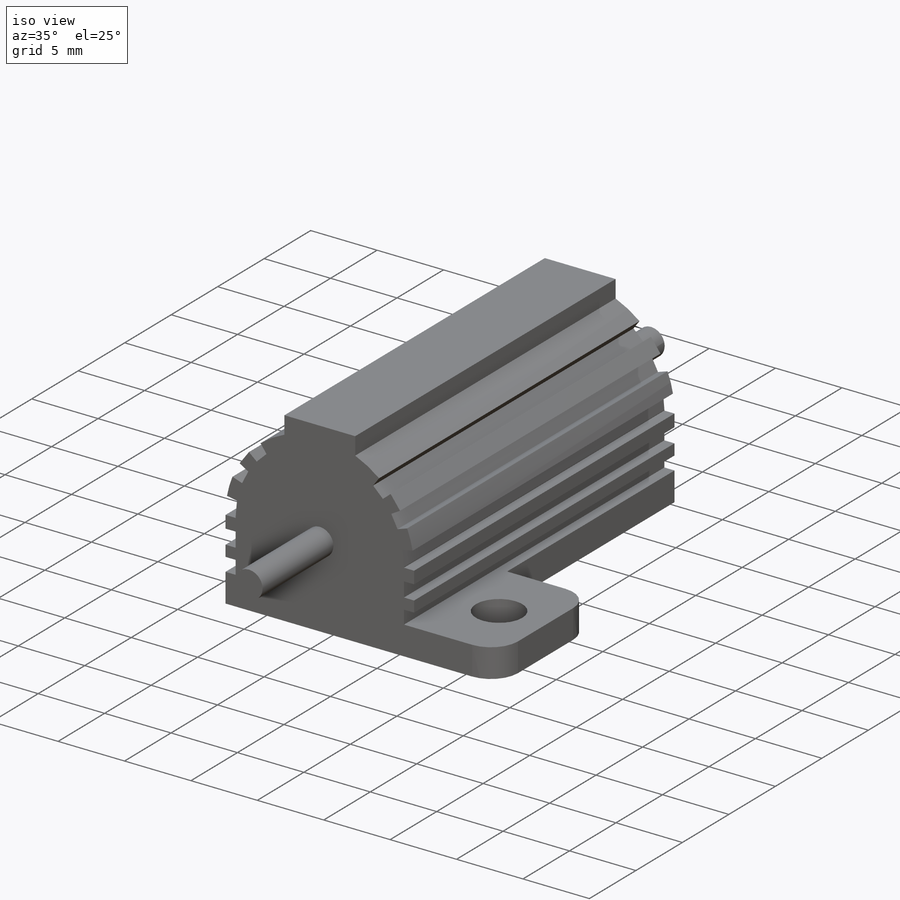
[diagram: iso view]
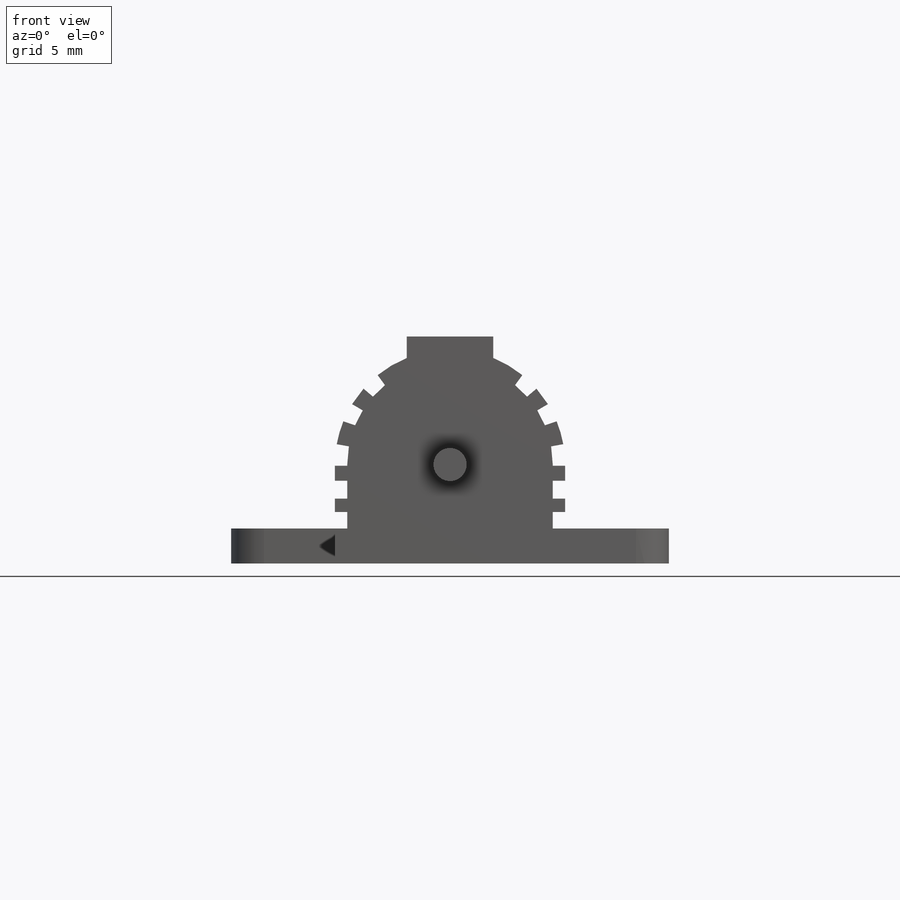
[diagram: front view]
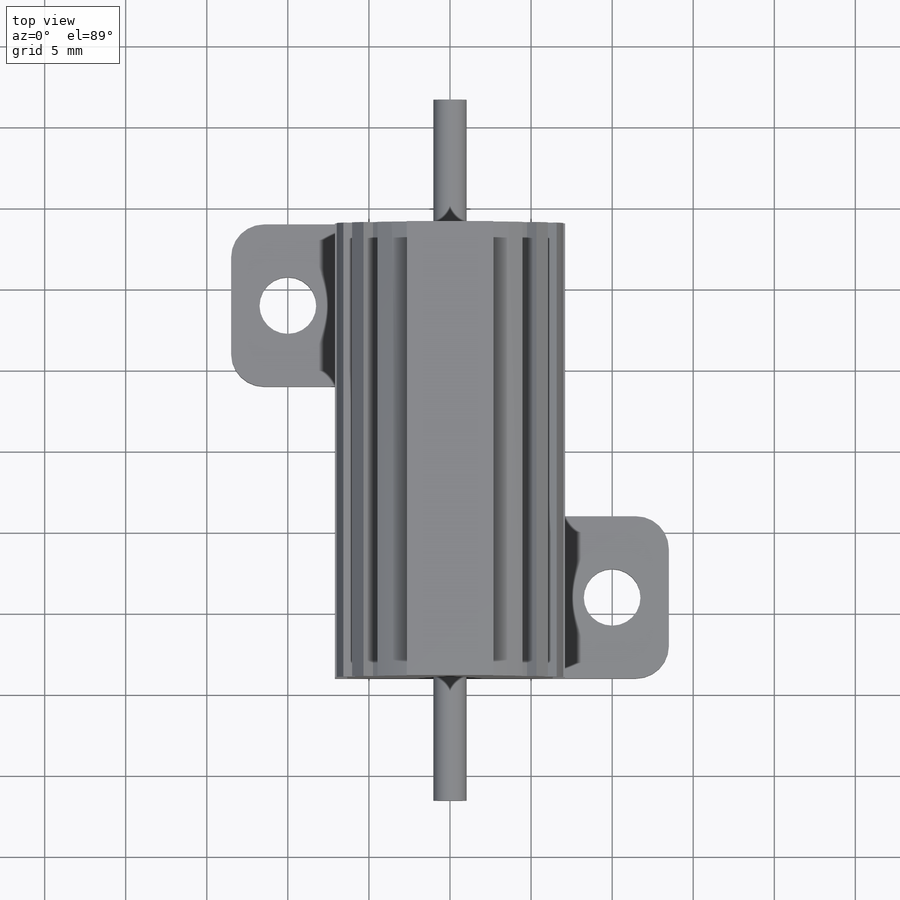
[diagram: top view]
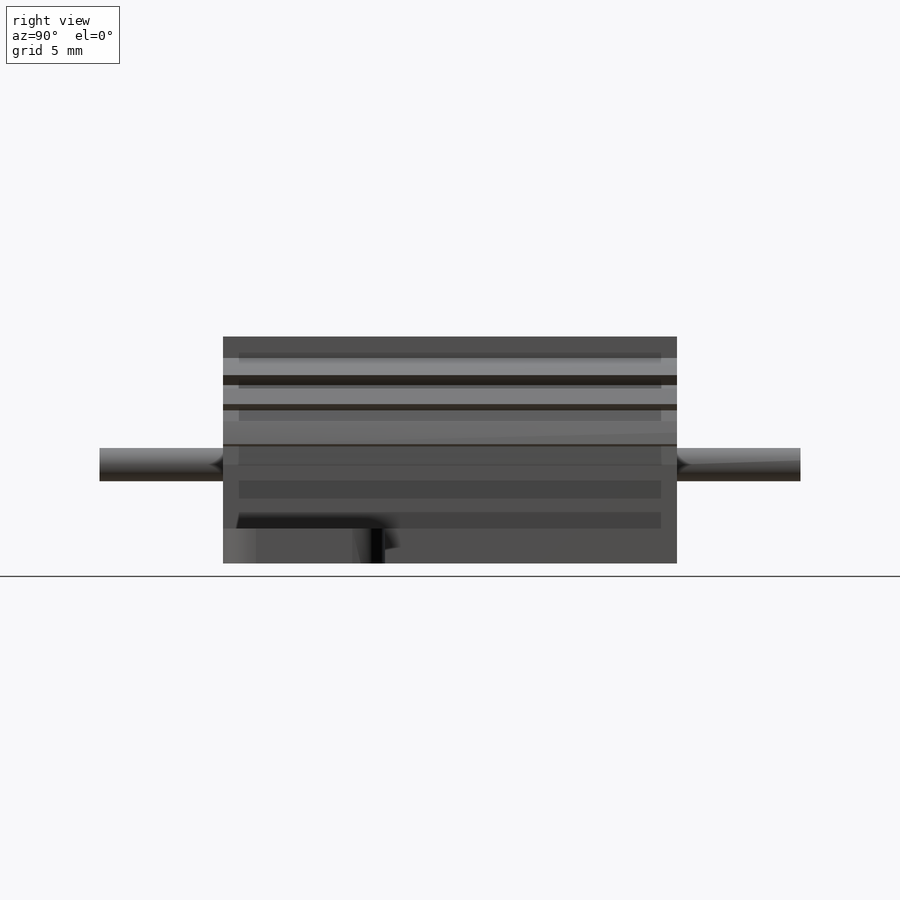
[diagram: right view]
SOLIDWORKS PART (.sldprt)
format: sldprt  version: not decoded by parser v0  size: 392,192 bytes
history: native  units: mm
features: sketch x5, plane x3, extrude x3, cut_extrude x2, mirror x2, material x1, fillet x1 + 1 further entry (+10 scaffold rows collapsed)
feature tree (28):
  scaffold x10  (default folders/planes/origin — collapsed)
  material  "Material <not specified>"
  plane  "PLANE-1"
  plane  "PLANE-2"
  plane  "PLANE-3"
  "Design Table"
  sketch  "Sketch2"  dims[D1=14.2mm D2=6.096mm D3=14.0mm D4=6.096mm]
  extrude  "Extrude1"  Depth=28mm
  sketch  "Sketch3"  dims[c1.D2=2.159mm c1.D3=5.2832mm c1.D1=0.762mm c2.D3=0.762mm]
  sketch  "Sketch4"  dims[D1=27.0mm D2=10.0mm D3=10.0mm]
  extrude  "Extrude8"  Depth=2.159mm
  fillet  "Fillet1"  Radius=2.032mm
  cut_extrude  "Cut-Extrude1"  [1 undecoded]
  mirror  "Mirror2"
  sketch  "Sketch5"  dims[D4=3.5mm D1=10.0mm D2=10.0mm D3=9.0mm D5=9.0mm]
  cut_extrude  "Cut-Extrude2"  [1 undecoded]
  sketch  "Sketch6"  dims[D1=~2.05232mm]
  extrude  "Extrude9"  Depth=7.62mm
  mirror  "Mirror3"
decode coverage: 9 of 13 modeling features carry decoded parameters; 1 rows unclassified (native names shown)
note: ~ marks probable driven/reference dimensions
note: 2 parameter values undecoded
note: suppression state not decoded; provenance and decode notes live in map.json
